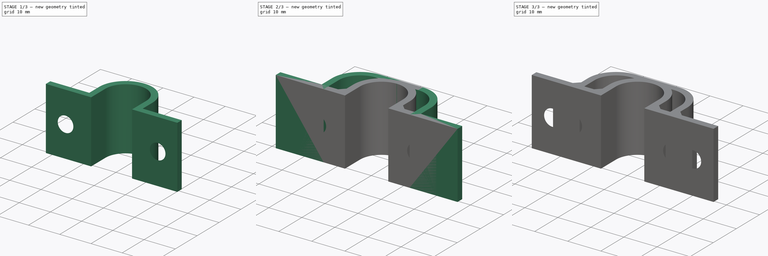
[diagram: build sequence overview — one tinted view per stage of 3, left to right]
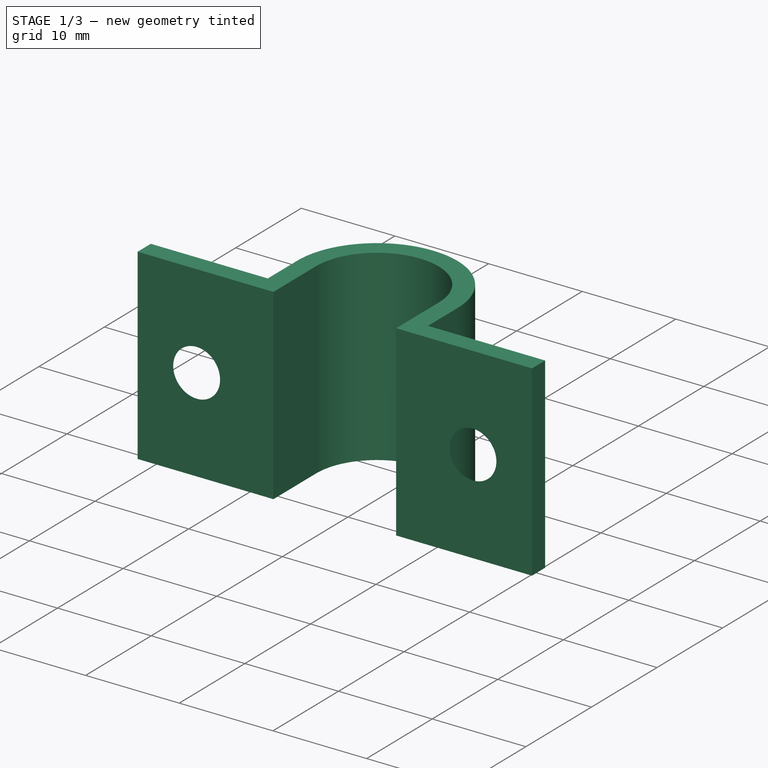
[diagram: stage 1 of 3 — iso view after this stage's code; geometry added in this stage tinted green]
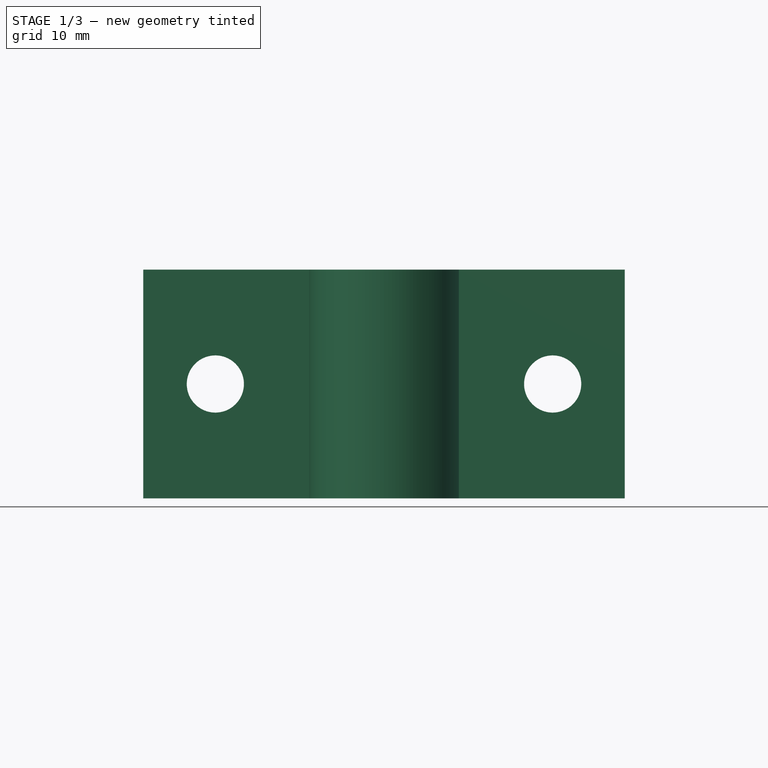
[diagram: stage 1 of 3 — front view after this stage's code; geometry added in this stage tinted green]
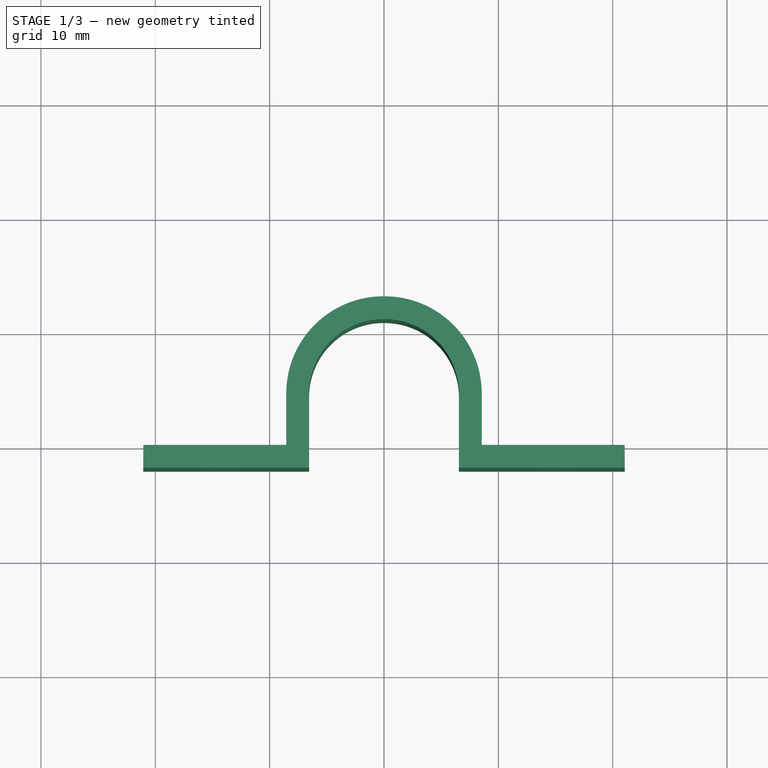
[diagram: stage 1 of 3 — top view after this stage's code; geometry added in this stage tinted green]
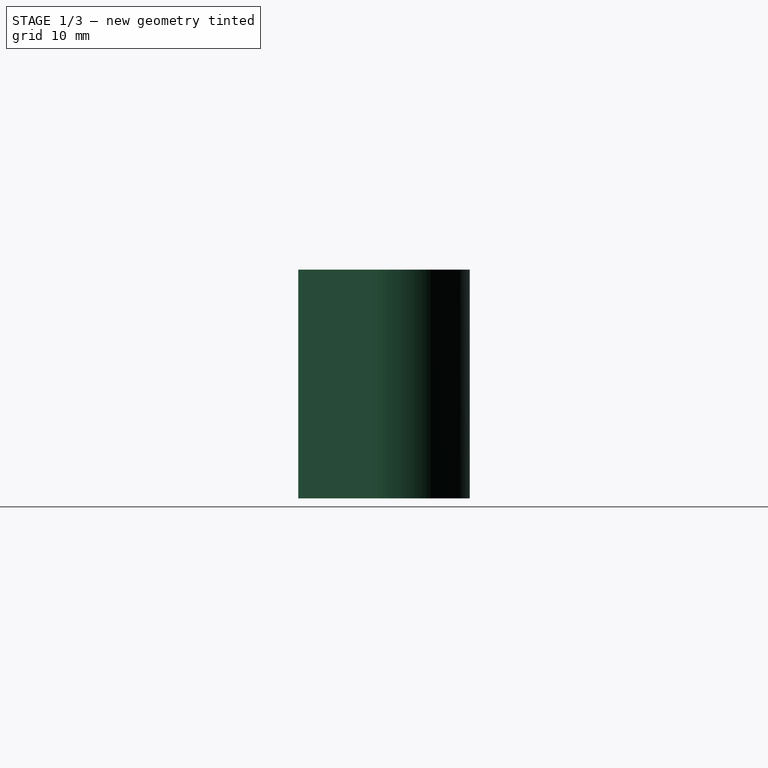
[diagram: stage 1 of 3 — right view after this stage's code; geometry added in this stage tinted green]
FCSTD DOCUMENT  (FreeCAD 0.21R33771 (Git))
Label: CableClip
License: All rights reserved
LicenseURL: https://en.wikipedia.org/wiki/All_rights_reserved
objects: Sketcher::SketchObject×4, PartDesign::Pad×2, PartDesign::Hole×2, PartDesign::Chamfer×2, PartDesign::Body×2, Spreadsheet::Sheet×1
note: 18 computed .brp shape members not serialized (recipe doc carries the construction recipe); baked Part::Feature solids carry a one-line shape summary decoded from their .brp

FEATURE [PartDesign::Body] Body  label="BodyDouble"
  Group = -> [Sketch,Pad,Sketch001,Hole,Chamfer]
  Origin = -> Origin
  Tip = -> Chamfer
FEATURE [Sketcher::SketchObject] Sketch002
  FullyConstrained = true
  MapMode = 5
  Support = -> [XY_Plane001]
  expr: Constraints[10] = <<config>>.cable
  expr: Constraints[11] = 0.05
  expr: Constraints[12] = <<config>>.thickness
  expr: Constraints[13] = <<config>>.hole * 2.5
  expr: Constraints[18] = <<config>>.cable / 2
  expr: Constraints[28] = <<config>>.thickness
  sketch-geometry (24):
    g0: ArcOfCircle CenterX=-0.05 CenterY=4.5 CenterZ=0 NormalX=0 NormalY=0 NormalZ=1 AngleXU=0 Radius=6.5 StartAngle=1.5708 EndAngle=3.14159
    g1: LineSegment StartX=-6.55 StartY=-2 StartZ=0 EndX=-21.05 EndY=-2 EndZ=0
    g2: LineSegment StartX=-21.05 StartY=-2 StartZ=0 EndX=-21.05 EndY=0 EndZ=0
    g3: LineSegment StartX=-21.05 StartY=0 StartZ=0 EndX=-8.55 EndY=0 EndZ=0
    g4: LineSegment StartX=-0.05 StartY=11 StartZ=0 EndX=0 EndY=11 EndZ=0
    g5: LineSegment StartX=-0.05 StartY=13 StartZ=0 EndX=0 EndY=13 EndZ=0
    g6: LineSegment StartX=0 StartY=13 StartZ=0 EndX=0 EndY=11 EndZ=0
    g7: LineSegment StartX=-6.55 StartY=-2 StartZ=0 EndX=-6.55 EndY=4.5 EndZ=0
    g8: LineSegment StartX=-8.55 StartY=0 StartZ=0 EndX=-8.55 EndY=4.5 EndZ=0
    g9: ArcOfCircle CenterX=-0.05 CenterY=4.5 CenterZ=0 NormalX=0 NormalY=0 NormalZ=1 AngleXU=0 Radius=8.5 StartAngle=1.5708 EndAngle=3.14159
    g10: LineSegment StartX=-8.55 StartY=4.5 StartZ=0 EndX=-6.55 EndY=4.5 EndZ=0
    g11: LineSegment StartX=0 StartY=13 StartZ=0 EndX=0 EndY=11 EndZ=0
    g12: ArcOfCircle CenterX=0.05 CenterY=4.5 CenterZ=0 NormalX=0 NormalY=0 NormalZ=1 AngleXU=0 Radius=6.5 StartAngle=1e-16 EndAngle=1.5708
    g13: LineSegment StartX=6.55 StartY=-2 StartZ=0 EndX=21.05 EndY=-2 EndZ=0
    g14: LineSegment StartX=21.05 StartY=-2 StartZ=0 EndX=21.05 EndY=1.69e-14 EndZ=0
    g15: LineSegment StartX=21.05 StartY=1.69e-14 StartZ=0 EndX=8.55 EndY=1.69e-14 EndZ=0
    g16: LineSegment StartX=0.05 StartY=11 StartZ=0 EndX=0 EndY=11 EndZ=0
    g17: LineSegment StartX=0.05 StartY=13 StartZ=0 EndX=0 EndY=13 EndZ=0
    g18: LineSegment StartX=0 StartY=13 StartZ=0 EndX=0 EndY=11 EndZ=0
    g19: LineSegment StartX=6.55 StartY=-2 StartZ=0 EndX=6.55 EndY=4.5 EndZ=0
    g20: LineSegment StartX=8.55 StartY=1.69e-14 StartZ=0 EndX=8.55 EndY=4.5 EndZ=0
    g21: ArcOfCircle CenterX=0.05 CenterY=4.5 CenterZ=0 NormalX=0 NormalY=0 NormalZ=1 AngleXU=0 Radius=8.5 StartAngle=0 EndAngle=1.5708
    g22: LineSegment StartX=8.55 StartY=4.5 StartZ=0 EndX=6.55 EndY=4.5 EndZ=0
    g23: LineSegment StartX=0 StartY=13 StartZ=0 EndX=0 EndY=11 EndZ=0
  constraints (62):
    c: Horizontal(g1)
    c: Coincident(g1,g2)
    c: Vertical(g2)
    c: Coincident(g2,g3)
    c: Horizontal(g3)
    c: Tangent(g0,g4) = 1.5708
    c: PointOnObject(g5,g-2)
    c: PointOnObject(g4,g-2)
    c: Horizontal(g5)
    c: Horizontal(g4)
    c: Diameter(g0) = 13
    c: DistanceX(g4,g4) = 0.05
    c: DistanceY(g4,g5) = 2
    c: DistanceX(g3,g3) = 12.5
    c: Coincident(g6,g5)
    c: Coincident(g6,g4)
    c: Coincident(g7,g1)
    c: Vertical(g7)
    c: DistanceY(g7,g7) = 6.5
    c: Tangent(g7,g0) = 1.5708
    c: Coincident(g8,g3)
    c: Vertical(g8)
    c: Coincident(g9,g0)
    c: Coincident(g9,g8)
    c: Coincident(g10,g8)
    c: Coincident(g10,g0)
    c: Horizontal(g10)
    c: PointOnObject(g3,g-1)
    c: DistanceY(g2,g2) = 2
    c: Coincident(g11,g5)
    c: Coincident(g11,g4)
    c: Tangent(g9,g5) = 1.5708
    c: Horizontal(g13)
    c: Coincident(g13,g14)
    c: Vertical(g14)
    c: Coincident(g14,g15)
    c: Horizontal(g15)
    c: Tangent(g12,g16) = -1.5708
    c: Horizontal(g17)
    c: Horizontal(g16)
    c: Coincident(g18,g17)
    c: Coincident(g18,g16)
    c: Coincident(g19,g13)
    c: Vertical(g19)
    c: Tangent(g19,g12) = -1.5708
    c: Coincident(g20,g15)
    c: Vertical(g20)
    c: Coincident(g21,g12)
    c: Coincident(g21,g20)
    c: Coincident(g22,g20)
    c: Coincident(g22,g12)
    c: Horizontal(g22)
    c: Coincident(g23,g17)
    c: Coincident(g23,g16)
    c: Tangent(g21,g17) = -1.5708
    c: Equal(g12,g0)
    c: Coincident(g5,g17)
    c: Coincident(g16,g4)
    c: Equal(g4,g16)
    c: Equal(g7,g19)
    c: Equal(g3,g15)
    c: Equal(g14,g2)
FEATURE [PartDesign::Pad] Pad001
  Direction = (0,0,1)
  Length = 20
  Length2 = 10
  Profile = -> Sketch002
  ReferenceAxis = -> Sketch002 [N_Axis]
  Type = 0
  expr: Length = <<config>>.width
FEATURE [Sketcher::SketchObject] Sketch003
  FullyConstrained = true
  MapMode = 5
  Placement = pos=(0,0,0) rot=(1,0,0;1.5708rad)
  Support = -> [XZ_Plane001]
  expr: Constraints[0] = <<config>>.width / 2
  expr: Constraints[1] = <<config>>.cable / 2 + <<config>>.hole * 2.5 / 2 + <<config>>.thickness
  expr: Constraints[2] = <<config>>.hole
  sketch-geometry (4):
    g0: Circle CenterX=-14.75 CenterY=10 CenterZ=0 NormalX=0 NormalY=0 NormalZ=1 AngleXU=0 Radius=2.5
    g1: LineSegment StartX=-14.75 StartY=10 StartZ=0 EndX=0 EndY=10 EndZ=0
    g2: LineSegment StartX=0 StartY=10 StartZ=0 EndX=14.75 EndY=10 EndZ=0
    g3: Circle CenterX=14.75 CenterY=10 CenterZ=0 NormalX=0 NormalY=0 NormalZ=1 AngleXU=0 Radius=2.5
  constraints (11):
    c: DistanceY(g-1,g0) = 10
    c: DistanceX(g0,g-1) = 14.75
    c: Diameter(g0) = 5
    c: Horizontal(g1)
    c: Horizontal(g2)
    c: PointOnObject(g2,g-2)
    c: Coincident(g3,g2)
    c: Equal(g3,g0)
    c: Equal(g2,g1)
    c: Coincident(g1,g2)
    c: Coincident(g0,g1)
FEATURE [PartDesign::Hole] Hole001
  BaseFeature = -> Pad001
  CustomThreadClearance = 0
  Depth = 25
  DepthType = 0
  Diameter = 5
  DrillForDepth = false
  DrillPoint = 1
  DrillPointAngle = 118
  HoleCutCountersinkAngle = 90
  HoleCutCustomValues = false
  HoleCutDepth = 0
  HoleCutDiameter = 9
  HoleCutType = 2
  ModelThread = false
  Profile = -> Sketch003
  Reversed = true
  Tapered = false
  TaperedAngle = 90
  ThreadClass = 0
  ThreadDepth = 25
  ThreadDepthType = 0
  ThreadDirection = 0
  ThreadFit = 0
  ThreadSize = 0
  ThreadType = 0
  Threaded = false
  UseCustomThreadClearance = false
  expr: Diameter = <<config>>.hole
  expr: HoleCutDiameter = <<config>>.hole * 1.8
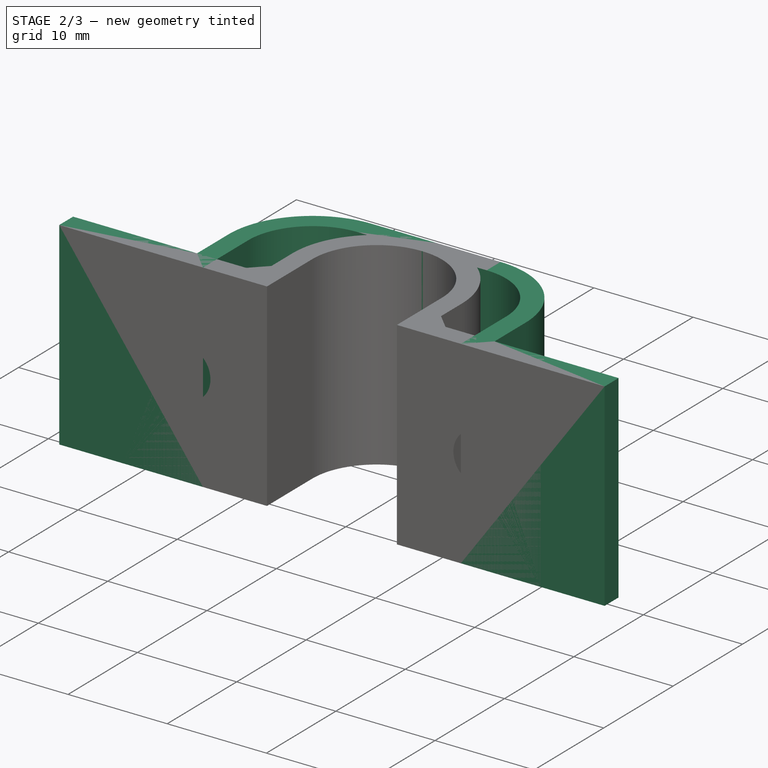
[diagram: stage 2 of 3 — iso view after this stage's code; geometry added in this stage tinted green]
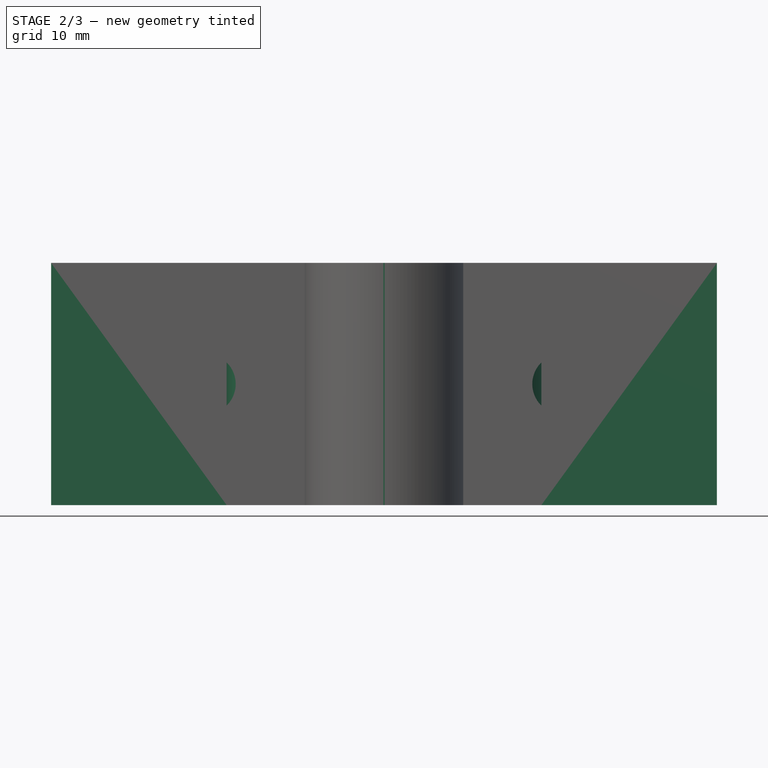
[diagram: stage 2 of 3 — front view after this stage's code; geometry added in this stage tinted green]
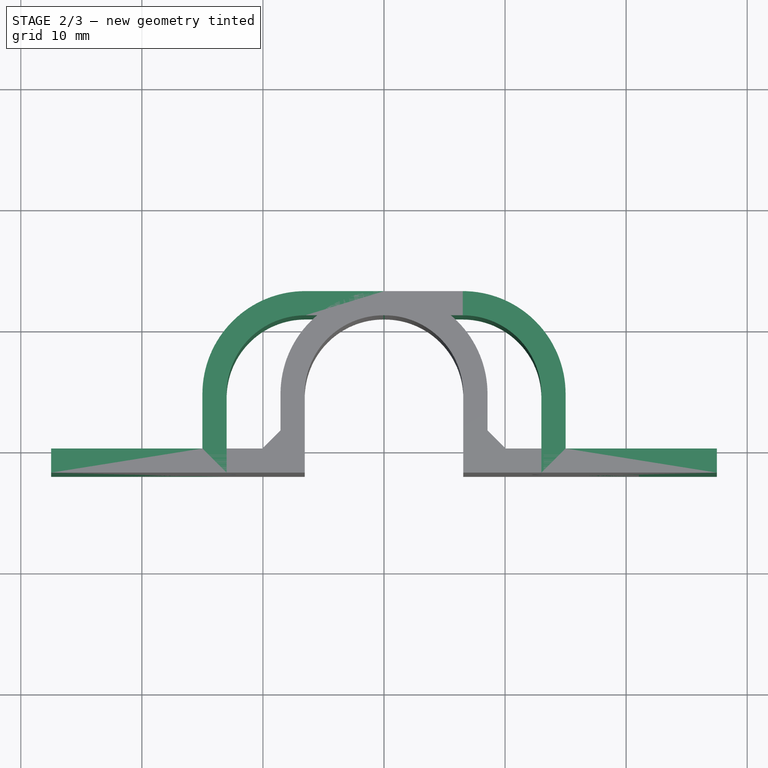
[diagram: stage 2 of 3 — top view after this stage's code; geometry added in this stage tinted green]
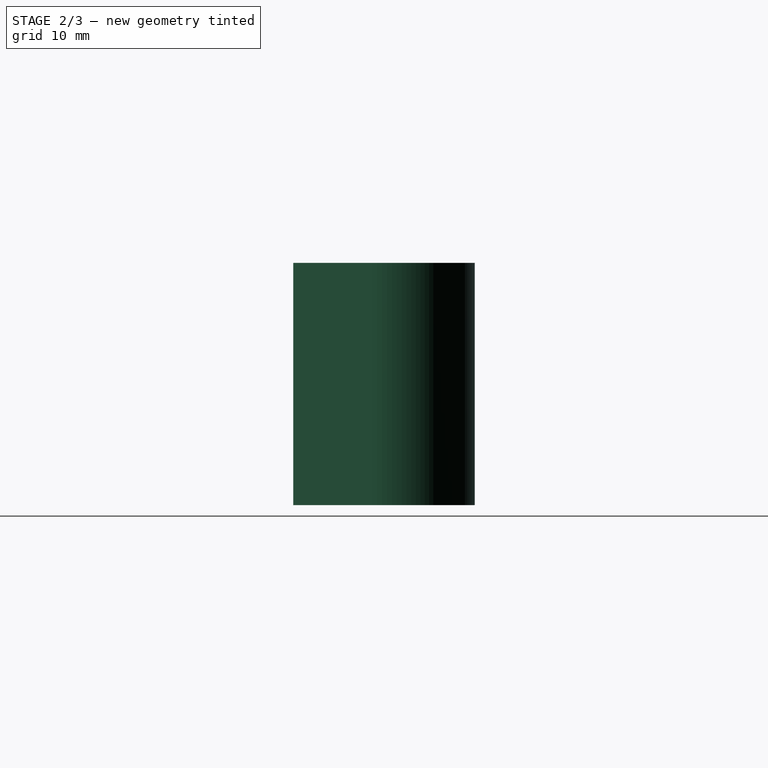
[diagram: stage 2 of 3 — right view after this stage's code; geometry added in this stage tinted green]
FEATURE [Spreadsheet::Sheet] Spreadsheet  label="config"
  cells = A1='cable diameter; B1(cable)==13 mm; A2='width; B2(width)==20 mm; A3='thickness; B3(thickness)==2 mm; A4='mouting hole diameter; B4(hole)==5 mm
FEATURE [Sketcher::SketchObject] Sketch
  FullyConstrained = true
  MapMode = 5
  Support = -> [XY_Plane]
  expr: Constraints[10] = <<config>>.cable
  expr: Constraints[11] = <<config>>.cable / 2
  expr: Constraints[12] = <<config>>.thickness
  expr: Constraints[13] = <<config>>.hole * 2.5
  expr: Constraints[18] = <<config>>.cable / 2
  expr: Constraints[28] = <<config>>.thickness
  sketch-geometry (24):
    g0: ArcOfCircle CenterX=-6.5 CenterY=4.5 CenterZ=0 NormalX=0 NormalY=0 NormalZ=1 AngleXU=0 Radius=6.5 StartAngle=1.5708 EndAngle=3.14159
    g1: LineSegment StartX=-13 StartY=-2 StartZ=0 EndX=-27.5 EndY=-2 EndZ=0
    g2: LineSegment StartX=-27.5 StartY=-2 StartZ=0 EndX=-27.5 EndY=0 EndZ=0
    g3: LineSegment StartX=-27.5 StartY=0 StartZ=0 EndX=-15 EndY=0 EndZ=0
    g4: LineSegment StartX=-6.5 StartY=11 StartZ=0 EndX=0 EndY=11 EndZ=0
    g5: LineSegment StartX=-6.5 StartY=13 StartZ=0 EndX=0 EndY=13 EndZ=0
    g6: LineSegment StartX=0 StartY=13 StartZ=0 EndX=0 EndY=11 EndZ=0
    g7: LineSegment StartX=-13 StartY=-2 StartZ=0 EndX=-13 EndY=4.5 EndZ=0
    g8: LineSegment StartX=-15 StartY=0 StartZ=0 EndX=-15 EndY=4.5 EndZ=0
    g9: ArcOfCircle CenterX=-6.5 CenterY=4.5 CenterZ=0 NormalX=0 NormalY=0 NormalZ=1 AngleXU=0 Radius=8.5 StartAngle=1.5708 EndAngle=3.14159
    g10: LineSegment StartX=-15 StartY=4.5 StartZ=0 EndX=-13 EndY=4.5 EndZ=0
    g11: LineSegment StartX=0 StartY=13 StartZ=0 EndX=0 EndY=11 EndZ=0
    g12: ArcOfCircle CenterX=6.5 CenterY=4.5 CenterZ=0 NormalX=0 NormalY=0 NormalZ=1 AngleXU=0 Radius=6.5 StartAngle=0 EndAngle=1.5708
    g13: LineSegment StartX=13 StartY=-2 StartZ=0 EndX=27.5 EndY=-2 EndZ=0
    g14: LineSegment StartX=27.5 StartY=-2 StartZ=0 EndX=27.5 EndY=7.4309e-12 EndZ=0
    g15: LineSegment StartX=27.5 StartY=7.4309e-12 StartZ=0 EndX=15 EndY=7.4309e-12 EndZ=0
    g16: LineSegment StartX=6.5 StartY=11 StartZ=0 EndX=0 EndY=11 EndZ=0
    g17: LineSegment StartX=6.5 StartY=13 StartZ=0 EndX=0 EndY=13 EndZ=0
    g18: LineSegment StartX=0 StartY=13 StartZ=0 EndX=0 EndY=11 EndZ=0
    g19: LineSegment StartX=13 StartY=-2 StartZ=0 EndX=13 EndY=4.5 EndZ=0
    g20: LineSegment StartX=15 StartY=7.4309e-12 StartZ=0 EndX=15 EndY=4.5 EndZ=0
    g21: ArcOfCircle CenterX=6.5 CenterY=4.5 CenterZ=0 NormalX=0 NormalY=0 NormalZ=1 AngleXU=0 Radius=8.5 StartAngle=0 EndAngle=1.5708
    g22: LineSegment StartX=15 StartY=4.5 StartZ=0 EndX=13 EndY=4.5 EndZ=0
    g23: LineSegment StartX=0 StartY=13 StartZ=0 EndX=0 EndY=11 EndZ=0
  constraints (62):
    c: Horizontal(g1)
    c: Coincident(g1,g2)
    c: Vertical(g2)
    c: Coincident(g2,g3)
    c: Horizontal(g3)
    c: Tangent(g0,g4) = 1.5708
    c: PointOnObject(g5,g-2)
    c: PointOnObject(g4,g-2)
    c: Horizontal(g5)
    c: Horizontal(g4)
    c: Diameter(g0) = 13
    c: DistanceX(g4,g4) = 6.5
    c: DistanceY(g4,g5) = 2
    c: DistanceX(g3,g3) = 12.5
    c: Coincident(g6,g5)
    c: Coincident(g6,g4)
    c: Coincident(g7,g1)
    c: Vertical(g7)
    c: DistanceY(g7,g7) = 6.5
    c: Tangent(g7,g0) = 1.5708
    c: Coincident(g8,g3)
    c: Vertical(g8)
    c: Coincident(g9,g0)
    c: Coincident(g9,g8)
    c: Coincident(g10,g8)
    c: Coincident(g10,g0)
    c: Horizontal(g10)
    c: PointOnObject(g3,g-1)
    c: DistanceY(g2,g2) = 2
    c: Coincident(g11,g5)
    c: Coincident(g11,g4)
    c: Tangent(g9,g5) = 1.5708
    c: Horizontal(g13)
    c: Coincident(g13,g14)
    c: Vertical(g14)
    c: Coincident(g14,g15)
    c: Horizontal(g15)
    c: Tangent(g12,g16) = -1.5708
    c: Horizontal(g17)
    c: Horizontal(g16)
    c: Coincident(g18,g17)
    c: Coincident(g18,g16)
    c: Coincident(g19,g13)
    c: Vertical(g19)
    c: Tangent(g19,g12) = -1.5708
    c: Coincident(g20,g15)
    c: Vertical(g20)
    c: Coincident(g21,g12)
    c: Coincident(g21,g20)
    c: Coincident(g22,g20)
    c: Coincident(g22,g12)
    c: Horizontal(g22)
    c: Coincident(g23,g17)
    c: Coincident(g23,g16)
    c: Tangent(g21,g17) = -1.5708
    c: Equal(g12,g0)
    c: Coincident(g5,g17)
    c: Coincident(g16,g4)
    c: Equal(g4,g16)
    c: Equal(g7,g19)
    c: Equal(g3,g15)
    c: Equal(g14,g2)
FEATURE [Sketcher::SketchObject] Sketch001
  FullyConstrained = true
  MapMode = 5
  Placement = pos=(0,0,0) rot=(1,0,0;1.5708rad)
  Support = -> [XZ_Plane]
  expr: Constraints[0] = <<config>>.width / 2
  expr: Constraints[1] = <<config>>.cable + <<config>>.hole * 2.5 / 2 + <<config>>.thickness
  expr: Constraints[2] = <<config>>.hole
  sketch-geometry (4):
    g0: Circle CenterX=-21.25 CenterY=10 CenterZ=0 NormalX=0 NormalY=0 NormalZ=1 AngleXU=0 Radius=2.5
    g1: LineSegment StartX=-21.25 StartY=10 StartZ=0 EndX=0 EndY=10 EndZ=0
    g2: LineSegment StartX=0 StartY=10 StartZ=0 EndX=21.25 EndY=10 EndZ=0
    g3: Circle CenterX=21.25 CenterY=10 CenterZ=0 NormalX=0 NormalY=0 NormalZ=1 AngleXU=0 Radius=2.5
  constraints (11):
    c: DistanceY(g-1,g0) = 10
    c: DistanceX(g0,g-1) = 21.25
    c: Diameter(g0) = 5
    c: Horizontal(g1)
    c: Horizontal(g2)
    c: PointOnObject(g2,g-2)
    c: Coincident(g3,g2)
    c: Equal(g3,g0)
    c: Equal(g2,g1)
    c: Coincident(g1,g2)
    c: Coincident(g0,g1)
FEATURE [PartDesign::Pad] Pad
  Direction = (0,0,1)
  Length = 20
  Length2 = 10
  Profile = -> Sketch
  ReferenceAxis = -> Sketch [N_Axis]
  Type = 0
  expr: Length = <<config>>.width
FEATURE [PartDesign::Chamfer] Chamfer001
  Angle = 45
  Base = -> Hole001 [Edge59,Edge52]
  BaseFeature = -> Hole001
  ChamferType = 0
  FlipDirection = false
  Size = 1.5
  Size2 = 1
  SupportTransform = false
  UseAllEdges = false
FEATURE [PartDesign::Body] Body001  label="BodySingle"
  Group = -> [Sketch002,Pad001,Sketch003,Hole001,Chamfer001]
  Origin = -> Origin001
  Tip = -> Chamfer001
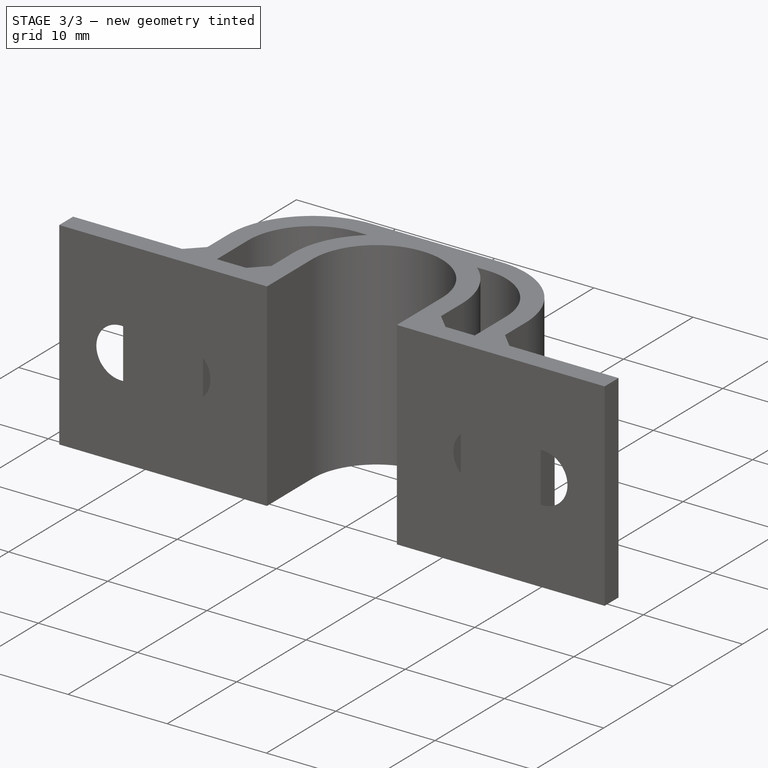
[diagram: stage 3 of 3 — iso view after this stage's code; geometry added in this stage tinted green]
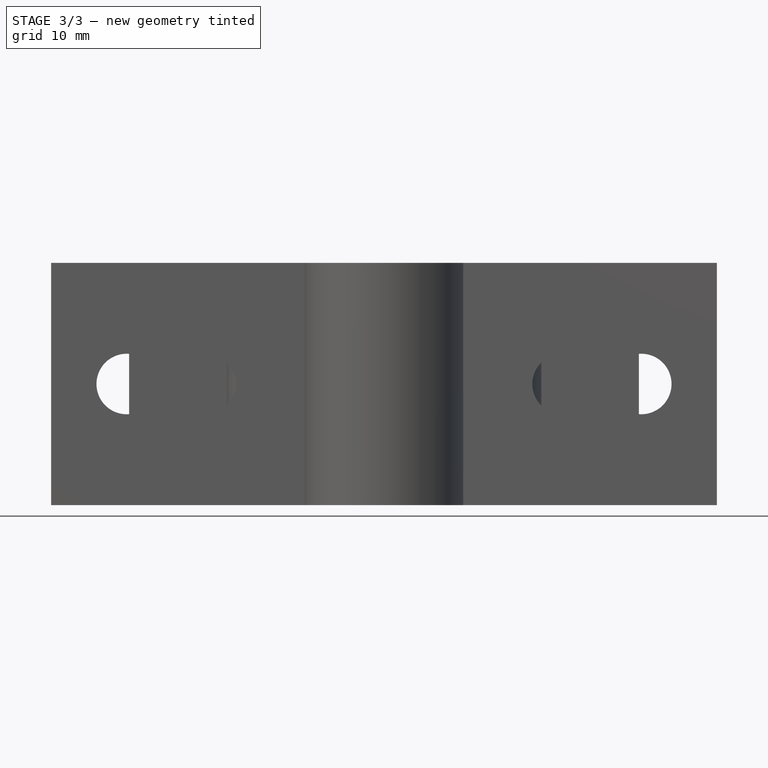
[diagram: stage 3 of 3 — front view after this stage's code; geometry added in this stage tinted green]
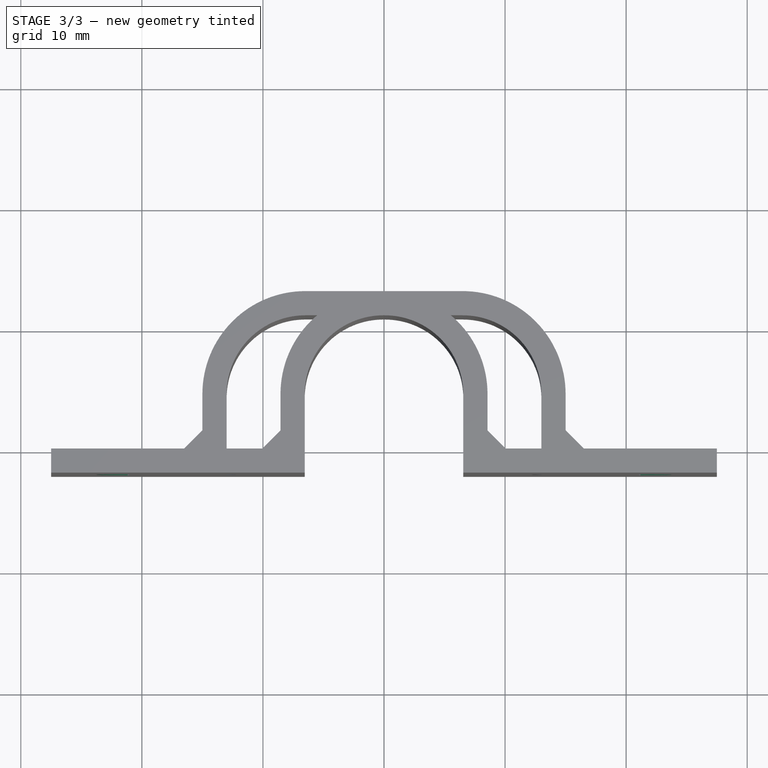
[diagram: stage 3 of 3 — top view after this stage's code; geometry added in this stage tinted green]
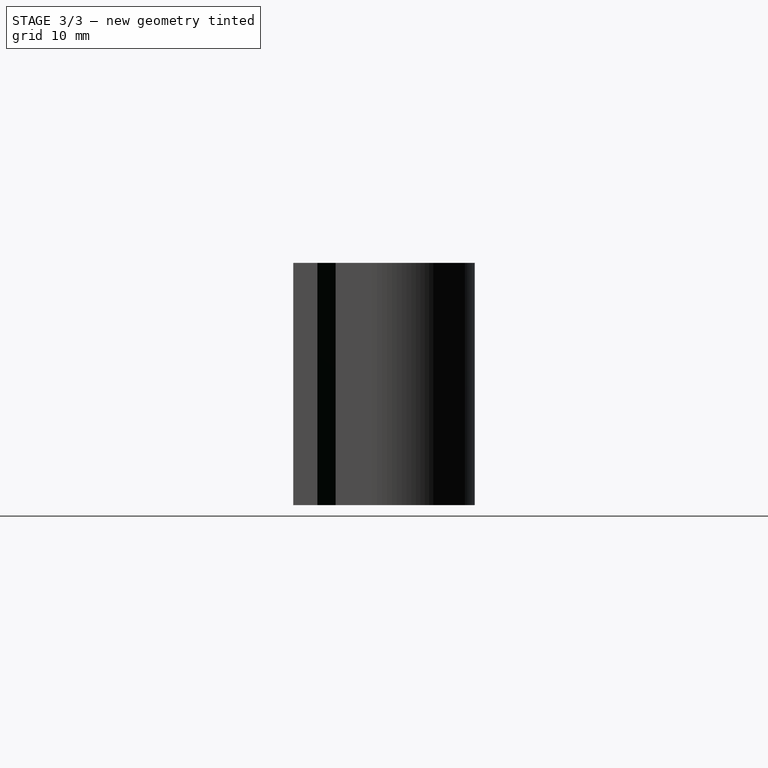
[diagram: stage 3 of 3 — right view after this stage's code; geometry added in this stage tinted green]
FEATURE [PartDesign::Hole] Hole
  BaseFeature = -> Pad
  CustomThreadClearance = 0
  Depth = 25
  DepthType = 0
  Diameter = 5
  DrillForDepth = false
  DrillPoint = 1
  DrillPointAngle = 118
  HoleCutCountersinkAngle = 90
  HoleCutCustomValues = false
  HoleCutDepth = 0
  HoleCutDiameter = 9
  HoleCutType = 2
  ModelThread = false
  Profile = -> Sketch001
  Reversed = true
  Tapered = false
  TaperedAngle = 90
  ThreadClass = 0
  ThreadDepth = 25
  ThreadDepthType = 0
  ThreadDirection = 0
  ThreadFit = 0
  ThreadSize = 0
  ThreadType = 0
  Threaded = false
  UseCustomThreadClearance = false
  expr: Diameter = <<config>>.hole
  expr: HoleCutDiameter = <<config>>.hole * 1.8
FEATURE [PartDesign::Chamfer] Chamfer
  Angle = 45
  Base = -> Hole [Edge59,Edge52]
  BaseFeature = -> Hole
  ChamferType = 0
  FlipDirection = false
  Size = 1.5
  Size2 = 1
  SupportTransform = false
  UseAllEdges = false
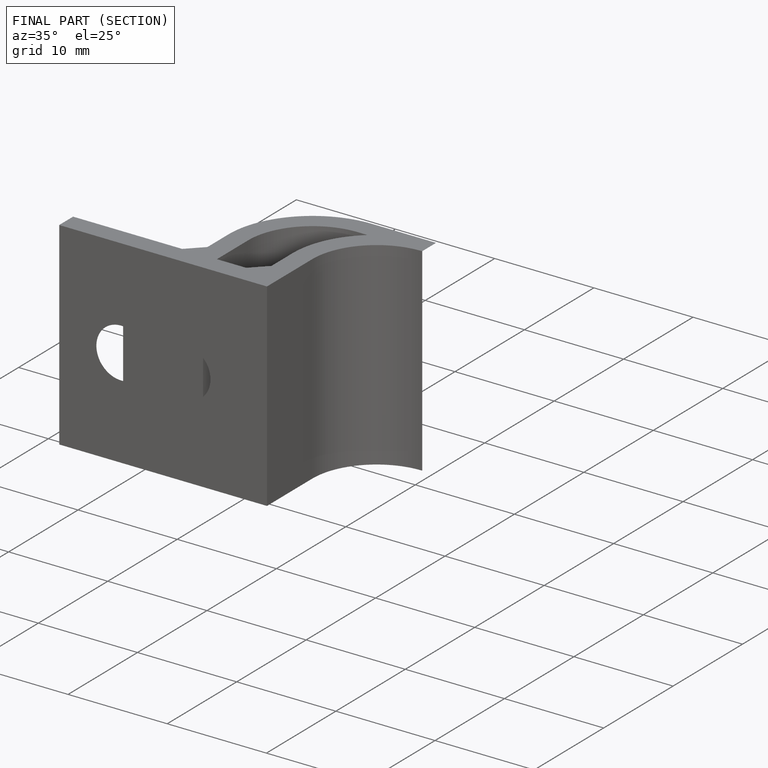
[diagram: finished part — half-section view (interior)]
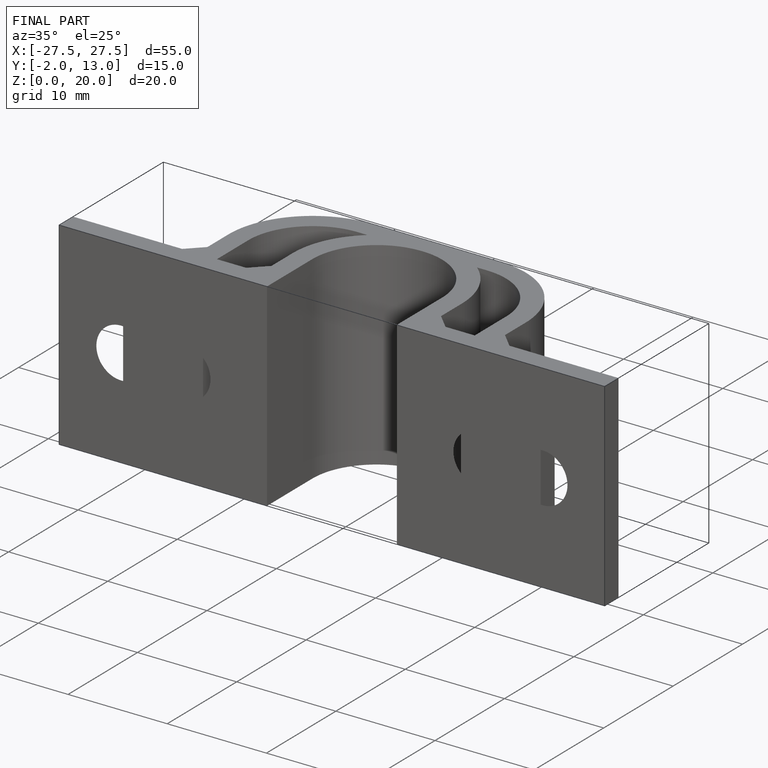
[diagram: finished part — iso view with bounding-box wireframe]
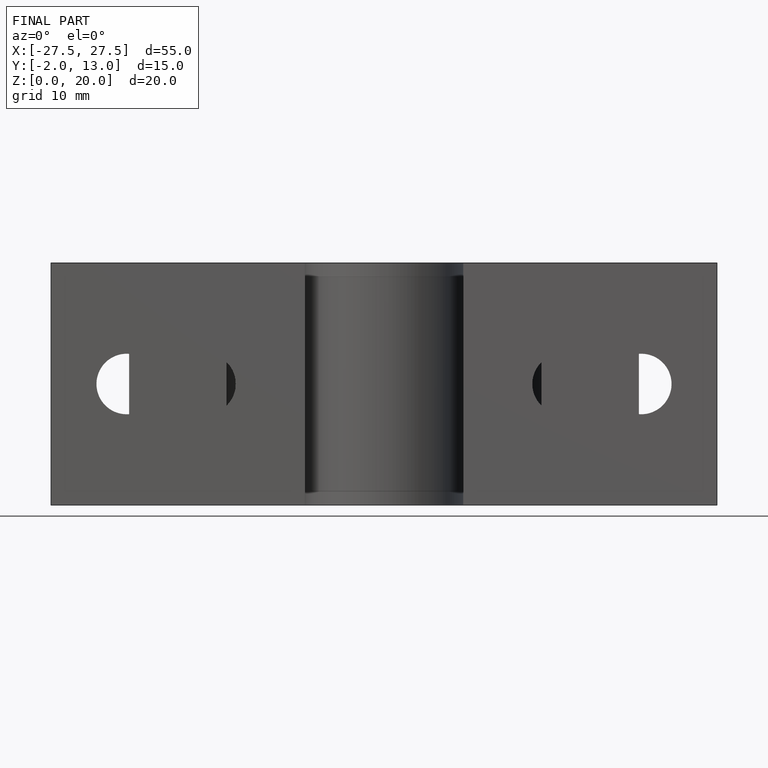
[diagram: finished part — front view with bounding-box wireframe]
